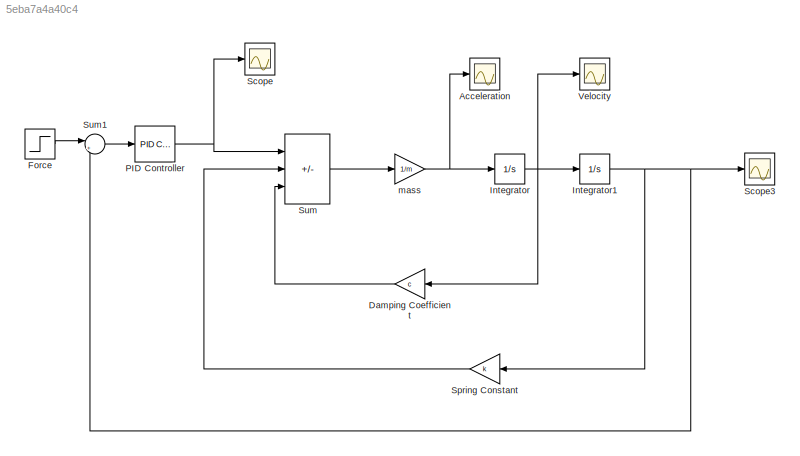
MODEL slx_5eba7a4a40c4
KIND model
CONFIG AbsTol = auto
CONFIG EnableMultiTasking = off
CONFIG FixedStep = auto
CONFIG MaxStep = auto
CONFIG MinStep = auto
CONFIG RelTol = 1e-3
CONFIG SampleTimeConstraint = Unconstrained
CONFIG SolverName = VariableStepAuto
CONFIG StartTime = 0.0
CONFIG StopTime = 10.0
BLOCK [Scope] Acceleration
  Floating = off
  NumInputPorts = 1
  ScopeSpecificationString = Simulink.scopes.TimeScopeBlockCfg('CurrentConfiguration', extmgr.ConfigurationSet(extmgr.Configuration('Core','General UI',true),extmgr.Configuration('Core','Source UI',true),extmgr.Configuration('Sources','WiredSimulink',true,'DataLoggingVariableName','ScopeData1'),extmgr.Configuration('Visuals','Time Domain',true,'SerializedDisplays',{struct('MinYLimReal','-0.34644','MaxYLimReal','0.59405','YLab...<+1363ch>
BLOCK [Gain] Damping Coefficient
  Gain = c
  NameLocation = top
BLOCK [Step] Force
  SampleTime = 0
BLOCK [Integrator] Integrator
BLOCK [Integrator] Integrator1
BLOCK [Reference] PID Controller  REF=slpidlib/PID Controller
  LibrarySourceBlock = simulink/Continuous/PID Controller
  SourceBlock = slpidlib/PID Controller
  SourceType = PID 1dof
BLOCK [Scope] Scope
  Floating = off
  NumInputPorts = 1
  ScopeSpecificationString = Simulink.scopes.TimeScopeBlockCfg('CurrentConfiguration', extmgr.ConfigurationSet(extmgr.Configuration('Core','General UI',true),extmgr.Configuration('Core','Source UI',true),extmgr.Configuration('Sources','WiredSimulink',true),extmgr.Configuration('Visuals','Time Domain',true,'SerializedDisplays',{struct('MinYLimReal','-0.125','MaxYLimReal','1.125','YLabelReal','','MinYLimMag','0.00000','MaxYLimM...<+1313ch>
BLOCK [Scope] Scope3
  Floating = off
  NumInputPorts = 1
  ScopeSpecificationString = Simulink.scopes.TimeScopeBlockCfg('CurrentConfiguration', extmgr.ConfigurationSet(extmgr.Configuration('Core','General UI',true),extmgr.Configuration('Core','Source UI',true),extmgr.Configuration('Sources','WiredSimulink',true,'DataLoggingVariableName','ScopeData3'),extmgr.Configuration('Visuals','Time Domain',true,'SerializedDisplays',{struct('MinYLimReal','-0.13133','MaxYLimReal','1.18201','YLab...<+1403ch>
BLOCK [Gain] Spring Constant
  Gain = k
  NameLocation = top
BLOCK [Sum] Sum
  IconShape = rectangular
  Inputs = +--
BLOCK [Sum] Sum1
  Inputs = |+-
BLOCK [Scope] Velocity
  Floating = off
  NumInputPorts = 1
  ScopeSpecificationString = Simulink.scopes.TimeScopeBlockCfg('CurrentConfiguration', extmgr.ConfigurationSet(extmgr.Configuration('Core','General UI',true),extmgr.Configuration('Core','Source UI',true),extmgr.Configuration('Sources','WiredSimulink',true,'DataLoggingVariableName','ScopeData2'),extmgr.Configuration('Visuals','Time Domain',true,'SerializedDisplays',{struct('MinYLimReal','-0.10924','MaxYLimReal','0.20715','YLab...<+1369ch>
BLOCK [Gain] mass
  Gain = 1/m
LINE Damping Coefficient:1 -> Sum:3
LINE Force:1 -> Sum1:1
NET Integrator1:1 -> Scope3:1, Spring Constant:1, Sum1:2
NET Integrator:1 -> Damping Coefficient:1, Integrator1:1, Velocity:1
NET PID Controller:1 -> Scope:1, Sum:1
LINE Spring Constant:1 -> Sum:2
LINE Sum1:1 -> PID Controller:1
LINE Sum:1 -> mass:1
NET mass:1 -> Acceleration:1, Integrator:1
note: NET lines group one-source signal fan-out (src -> all destinations, sorted); 1:1 wires keep LINE
